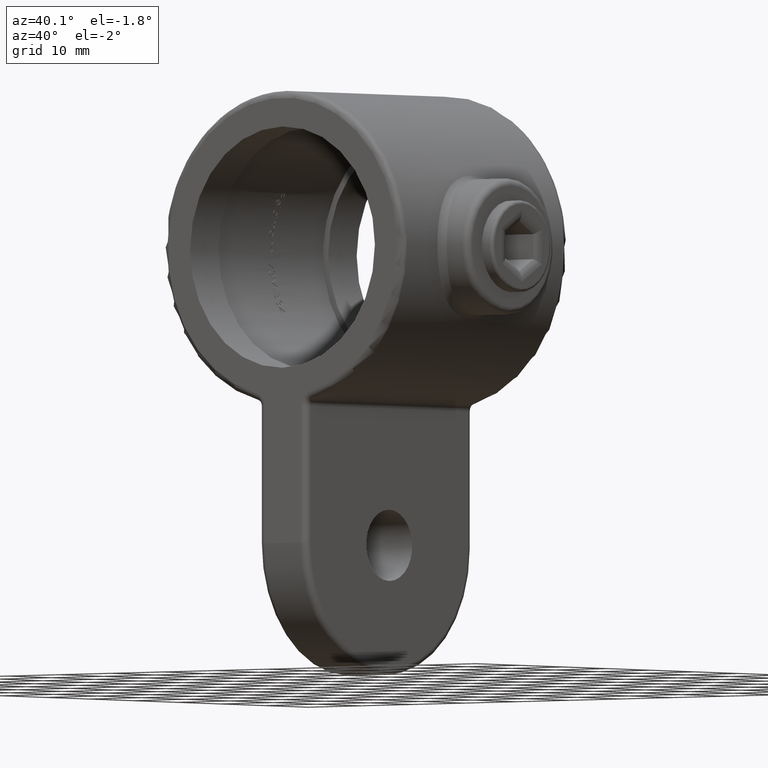
[diagram: clean part render]
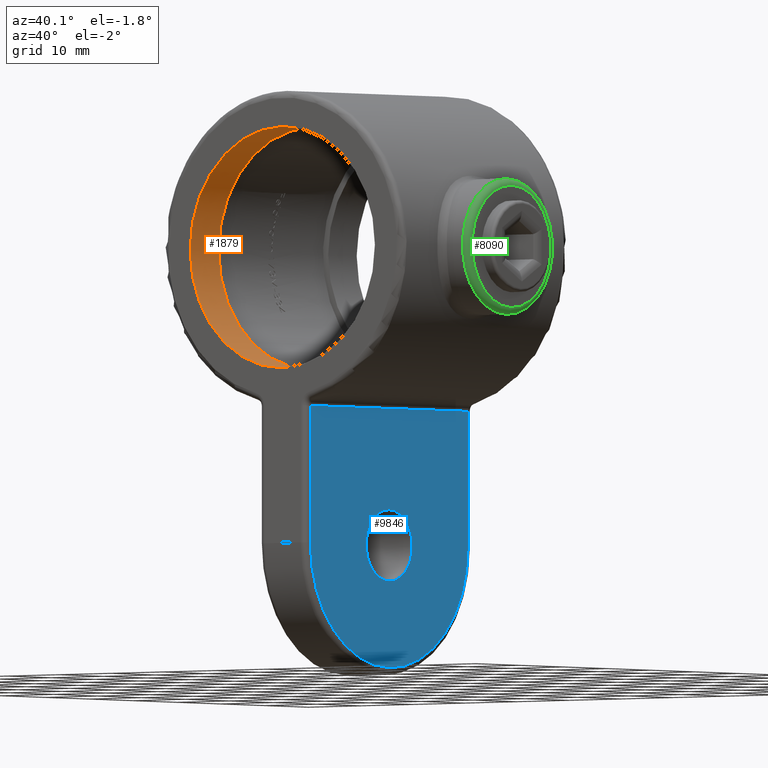
[diagram: same view with three faces highlighted in distinct colors, each labeled with its STEP entity id]
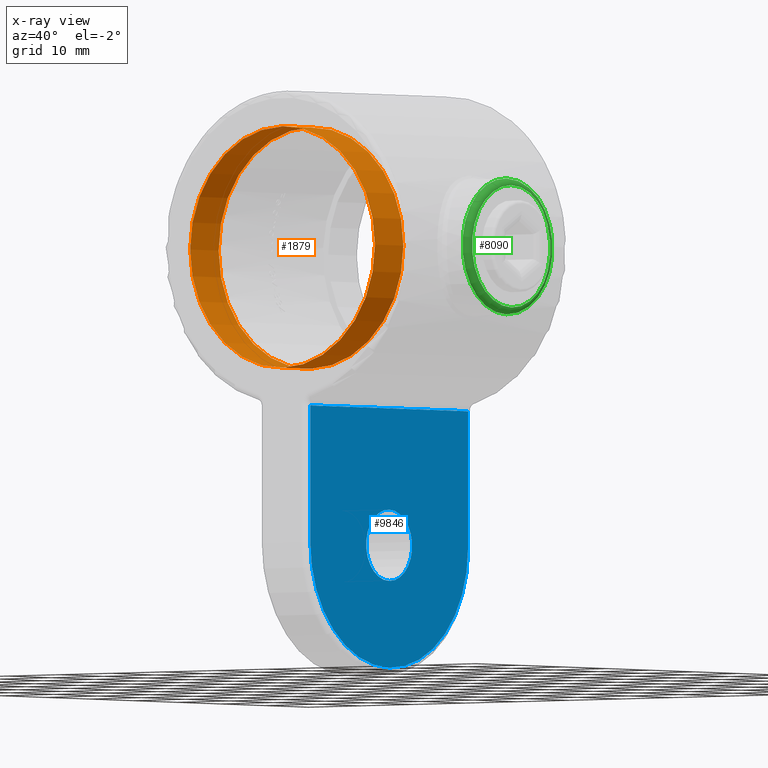
[diagram: x-ray of the same camera — body ghosted, the three highlighted faces saturated]
A machine part, auxiliary view with three faces highlighted in distinct colors.
The next image is the same camera in x-ray (body ghosted, the three faces saturated) — at least one of them is partly hidden behind the body in this view.
Their STEP definitions:

[orange] entity #1879 — the highlighted cylindrical surface (bore or boss wall) has radius 17.75 mm, axis along (-0, -1, -0).
#769 = FACE_OUTER_BOUND ( 'NONE', #5772, .T. ) ;
#1649 = CARTESIAN_POINT ( 'NONE',  ( 0.000000000000000000, -19.00000000000000000, 17.75000000000000355 ) ) ;
#1818 = CARTESIAN_POINT ( 'NONE',  ( 0.000000000000000000, -12.50000000000000000, 17.75000000000000355 ) ) ;
#1879 = ADVANCED_FACE ( 'NONE', ( #769, #9947 ), #5456, .F. ) ;
#4425 = CARTESIAN_POINT ( 'NONE',  ( 0.000000000000000000, 19.00000000000000000, 0.000000000000000000 ) ) ;
#4901 = ORIENTED_EDGE ( 'NONE', *, *, #5010, .F. ) ;
#5010 = EDGE_CURVE ( 'NONE', #12038, #12038, #8429, .T. ) ;
#5227 = EDGE_CURVE ( 'NONE', #10083, #10083, #8116, .T. ) ;
#5376 = DIRECTION ( 'NONE',  ( -0.000000000000000000, -1.000000000000000000, -0.000000000000000000 ) ) ;
#5456 = CYLINDRICAL_SURFACE ( 'NONE', #9091, 17.75000000000000355 ) ;
#5533 = DIRECTION ( 'NONE',  ( 0.000000000000000000, 0.000000000000000000, 1.000000000000000000 ) ) ;
#5772 = EDGE_LOOP ( 'NONE', ( #4901 ) ) ;
#5943 = DIRECTION ( 'NONE',  ( 0.000000000000000000, 1.000000000000000000, 0.000000000000000000 ) ) ;
#6484 = AXIS2_PLACEMENT_3D ( 'NONE', #9429, #7548, #5533 ) ;
#7548 = DIRECTION ( 'NONE',  ( 0.000000000000000000, 1.000000000000000000, 0.000000000000000000 ) ) ;
#7815 = CARTESIAN_POINT ( 'NONE',  ( 0.000000000000000000, -19.00000000000000000, 0.000000000000000000 ) ) ;
#8116 = CIRCLE ( 'NONE', #6484, 17.75000000000000355 ) ;
#8290 = DIRECTION ( 'NONE',  ( 0.000000000000000000, 0.000000000000000000, -1.000000000000000000 ) ) ;
#8429 = CIRCLE ( 'NONE', #12263, 17.75000000000000355 ) ;
#9091 = AXIS2_PLACEMENT_3D ( 'NONE', #4425, #5376, #8290 ) ;
#9107 = DIRECTION ( 'NONE',  ( 0.000000000000000000, 0.000000000000000000, 1.000000000000000000 ) ) ;
#9429 = CARTESIAN_POINT ( 'NONE',  ( 0.000000000000000000, -12.50000000000000000, 0.000000000000000000 ) ) ;
#9947 = FACE_OUTER_BOUND ( 'NONE', #11205, .T. ) ;
#10083 = VERTEX_POINT ( 'NONE', #1818 ) ;
#10750 = ORIENTED_EDGE ( 'NONE', *, *, #5227, .T. ) ;
#11205 = EDGE_LOOP ( 'NONE', ( #10750 ) ) ;
#12038 = VERTEX_POINT ( 'NONE', #1649 ) ;
#12263 = AXIS2_PLACEMENT_3D ( 'NONE', #7815, #5943, #9107 ) ;

[blue] entity #9846 — the highlighted planar face has unit normal (-1, 0, 0).
#29 = CARTESIAN_POINT ( 'NONE',  ( 4.500000000000000000, 0.000000000000000000, -61.50000000000000000 ) ) ;
#213 = ORIENTED_EDGE ( 'NONE', *, *, #6138, .T. ) ;
#230 = VERTEX_POINT ( 'NONE', #29 ) ;
#401 = FACE_OUTER_BOUND ( 'NONE', #5293, .T. ) ;
#701 = DIRECTION ( 'NONE',  ( -1.000000000000000000, 0.000000000000000000, 0.000000000000000000 ) ) ;
#1130 = EDGE_CURVE ( 'NONE', #11829, #5180, #4272, .T. ) ;
#1394 = EDGE_CURVE ( 'NONE', #5180, #2902, #8295, .T. ) ;
#1475 = EDGE_CURVE ( 'NONE', #3648, #3648, #6505, .T. ) ;
#2261 = DIRECTION ( 'NONE',  ( 0.000000000000000000, 0.000000000000000000, -1.000000000000000000 ) ) ;
#2307 = CARTESIAN_POINT ( 'NONE',  ( 4.500000000000000000, -18.00000000000000000, -62.50000000000000000 ) ) ;
#2704 = CARTESIAN_POINT ( 'NONE',  ( 4.500000000000000000, 18.00000000000000000, -22.55548713727992194 ) ) ;
#2902 = VERTEX_POINT ( 'NONE', #10710 ) ;
#3059 = DIRECTION ( 'NONE',  ( -1.000000000000000000, 0.000000000000000000, 0.000000000000000000 ) ) ;
#3648 = VERTEX_POINT ( 'NONE', #5661 ) ;
#3708 = VECTOR ( 'NONE', #9921, 1000.000000000000000 ) ;
#3737 = EDGE_CURVE ( 'NONE', #2902, #10017, #8240, .T. ) ;
#3807 = ORIENTED_EDGE ( 'NONE', *, *, #1394, .T. ) ;
#4163 = CARTESIAN_POINT ( 'NONE',  ( 4.500000000000000000, 18.00000000000000000, -43.50000000000000000 ) ) ;
#4272 = LINE ( 'NONE', #2704, #9810 ) ;
#4767 = CARTESIAN_POINT ( 'NONE',  ( 4.500000000000000000, -18.00000000000000000, -43.50000000000000000 ) ) ;
#4812 = DIRECTION ( 'NONE',  ( -0.000000000000000000, -0.000000000000000000, 1.000000000000000000 ) ) ;
#5180 = VERTEX_POINT ( 'NONE', #11168 ) ;
#5251 = DIRECTION ( 'NONE',  ( 1.000000000000000000, -0.000000000000000000, -0.000000000000000000 ) ) ;
#5293 = EDGE_LOOP ( 'NONE', ( #7153, #213, #7396, #3807, #8645 ) ) ;
#5661 = CARTESIAN_POINT ( 'NONE',  ( 4.500000000000000888, 0.000000000000000000, -38.25000000000000000 ) ) ;
#5669 = VECTOR ( 'NONE', #2261, 1000.000000000000000 ) ;
#5683 = EDGE_LOOP ( 'NONE', ( #10781 ) ) ;
#5735 = AXIS2_PLACEMENT_3D ( 'NONE', #12020, #9104, #9142 ) ;
#6138 = EDGE_CURVE ( 'NONE', #230, #11829, #9443, .T. ) ;
#6505 = CIRCLE ( 'NONE', #10521, 5.249999999999997335 ) ;
#6517 = CARTESIAN_POINT ( 'NONE',  ( 4.500000000000000888, 0.000000000000000000, -43.50000000000000000 ) ) ;
#6559 = DIRECTION ( 'NONE',  ( 0.000000000000000000, 0.000000000000000000, 1.000000000000000000 ) ) ;
#6781 = PLANE ( 'NONE',  #6862 ) ;
#6862 = AXIS2_PLACEMENT_3D ( 'NONE', #10663, #3059, #7770 ) ;
#7153 = ORIENTED_EDGE ( 'NONE', *, *, #9687, .T. ) ;
#7396 = ORIENTED_EDGE ( 'NONE', *, *, #1130, .T. ) ;
#7770 = DIRECTION ( 'NONE',  ( 0.000000000000000000, 0.000000000000000000, 1.000000000000000000 ) ) ;
#7838 = FACE_BOUND ( 'NONE', #5683, .T. ) ;
#8240 = LINE ( 'NONE', #2307, #5669 ) ;
#8295 = LINE ( 'NONE', #8931, #3708 ) ;
#8645 = ORIENTED_EDGE ( 'NONE', *, *, #3737, .T. ) ;
#8894 = CIRCLE ( 'NONE', #5735, 18.00000000000000000 ) ;
#8931 = CARTESIAN_POINT ( 'NONE',  ( 4.500000000000000000, -19.00000000000000000, -23.36129277244733871 ) ) ;
#9104 = DIRECTION ( 'NONE',  ( 1.000000000000000000, -0.000000000000000000, -0.000000000000000000 ) ) ;
#9142 = DIRECTION ( 'NONE',  ( 0.000000000000000000, 0.000000000000000000, 1.000000000000000000 ) ) ;
#9443 = CIRCLE ( 'NONE', #12449, 18.00000000000000000 ) ;
#9687 = EDGE_CURVE ( 'NONE', #10017, #230, #8894, .T. ) ;
#9810 = VECTOR ( 'NONE', #4812, 1000.000000000000000 ) ;
#9846 = ADVANCED_FACE ( 'NONE', ( #401, #7838 ), #6781, .F. ) ;
#9921 = DIRECTION ( 'NONE',  ( -0.000000000000000000, -1.000000000000000000, -0.000000000000000000 ) ) ;
#10017 = VERTEX_POINT ( 'NONE', #4767 ) ;
#10521 = AXIS2_PLACEMENT_3D ( 'NONE', #6517, #701, #6559 ) ;
#10663 = CARTESIAN_POINT ( 'NONE',  ( 4.500000000000000000, 19.00000000000000000, -62.50000000000000000 ) ) ;
#10710 = CARTESIAN_POINT ( 'NONE',  ( 4.500000000000000000, -18.00000000000000000, -23.36129277244733871 ) ) ;
#10781 = ORIENTED_EDGE ( 'NONE', *, *, #1475, .T. ) ;
#11055 = CARTESIAN_POINT ( 'NONE',  ( 4.500000000000000000, 0.000000000000000000, -43.50000000000000000 ) ) ;
#11168 = CARTESIAN_POINT ( 'NONE',  ( 4.500000000000000000, 18.00000000000000000, -23.36129277244733871 ) ) ;
#11829 = VERTEX_POINT ( 'NONE', #4163 ) ;
#12020 = CARTESIAN_POINT ( 'NONE',  ( 4.500000000000000000, 0.000000000000000000, -43.50000000000000000 ) ) ;
#12081 = DIRECTION ( 'NONE',  ( 0.000000000000000000, 0.000000000000000000, 1.000000000000000000 ) ) ;
#12449 = AXIS2_PLACEMENT_3D ( 'NONE', #11055, #5251, #12081 ) ;

[green] entity #8090 — the highlighted toroidal blend (fillet) surface has major radius 9 mm and minor (blend) radius 1 mm.
#1576 = TOROIDAL_SURFACE ( 'NONE', #1995, 9.000000000000001776, 1.000000000000000000 ) ;
#1656 = EDGE_LOOP ( 'NONE', ( #6793 ) ) ;
#1995 = AXIS2_PLACEMENT_3D ( 'NONE', #3238, #11005, #5290 ) ;
#2062 = EDGE_LOOP ( 'NONE', ( #9732 ) ) ;
#3238 = CARTESIAN_POINT ( 'NONE',  ( 27.00000000000000355, 0.000000000000000000, 0.000000000000000000 ) ) ;
#3552 = AXIS2_PLACEMENT_3D ( 'NONE', #4899, #7797, #6772 ) ;
#4013 = EDGE_CURVE ( 'NONE', #4092, #4092, #12075, .T. ) ;
#4092 = VERTEX_POINT ( 'NONE', #7605 ) ;
#4814 = CIRCLE ( 'NONE', #11208, 9.000000000000001776 ) ;
#4899 = CARTESIAN_POINT ( 'NONE',  ( 27.00000000000000355, 0.000000000000000000, 0.000000000000000000 ) ) ;
#4906 = EDGE_CURVE ( 'NONE', #6492, #6492, #4814, .T. ) ;
#5290 = DIRECTION ( 'NONE',  ( 0.000000000000000000, 0.000000000000000000, -1.000000000000000000 ) ) ;
#6207 = DIRECTION ( 'NONE',  ( 1.000000000000000000, 0.000000000000000000, 0.000000000000000000 ) ) ;
#6254 = DIRECTION ( 'NONE',  ( 0.000000000000000000, 0.000000000000000000, -1.000000000000000000 ) ) ;
#6492 = VERTEX_POINT ( 'NONE', #10429 ) ;
#6772 = DIRECTION ( 'NONE',  ( 0.000000000000000000, 0.000000000000000000, -1.000000000000000000 ) ) ;
#6793 = ORIENTED_EDGE ( 'NONE', *, *, #4013, .F. ) ;
#7605 = CARTESIAN_POINT ( 'NONE',  ( 27.00000000000000355, 0.000000000000000000, -10.00000000000000000 ) ) ;
#7797 = DIRECTION ( 'NONE',  ( -1.000000000000000000, -0.000000000000000000, -0.000000000000000000 ) ) ;
#8077 = FACE_OUTER_BOUND ( 'NONE', #1656, .T. ) ;
#8090 = ADVANCED_FACE ( 'NONE', ( #8077, #10455 ), #1576, .T. ) ;
#9732 = ORIENTED_EDGE ( 'NONE', *, *, #4906, .F. ) ;
#10027 = CARTESIAN_POINT ( 'NONE',  ( 28.00000000000000355, 0.000000000000000000, 0.000000000000000000 ) ) ;
#10429 = CARTESIAN_POINT ( 'NONE',  ( 28.00000000000000355, 0.000000000000000000, -9.000000000000001776 ) ) ;
#10455 = FACE_OUTER_BOUND ( 'NONE', #2062, .T. ) ;
#11005 = DIRECTION ( 'NONE',  ( 1.000000000000000000, 0.000000000000000000, 0.000000000000000000 ) ) ;
#11208 = AXIS2_PLACEMENT_3D ( 'NONE', #10027, #6207, #6254 ) ;
#12075 = CIRCLE ( 'NONE', #3552, 10.00000000000000000 ) ;